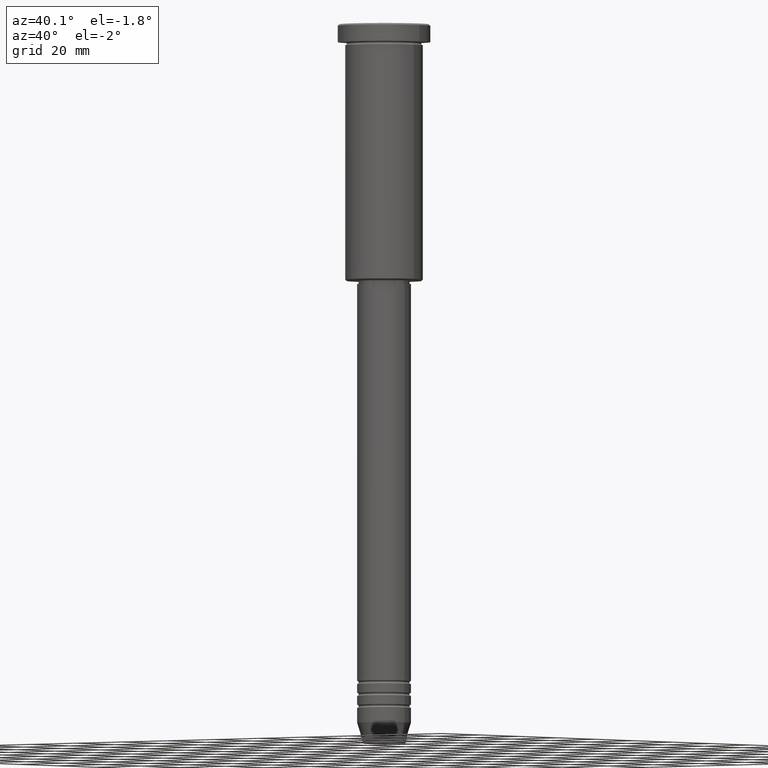
[diagram: clean part render]
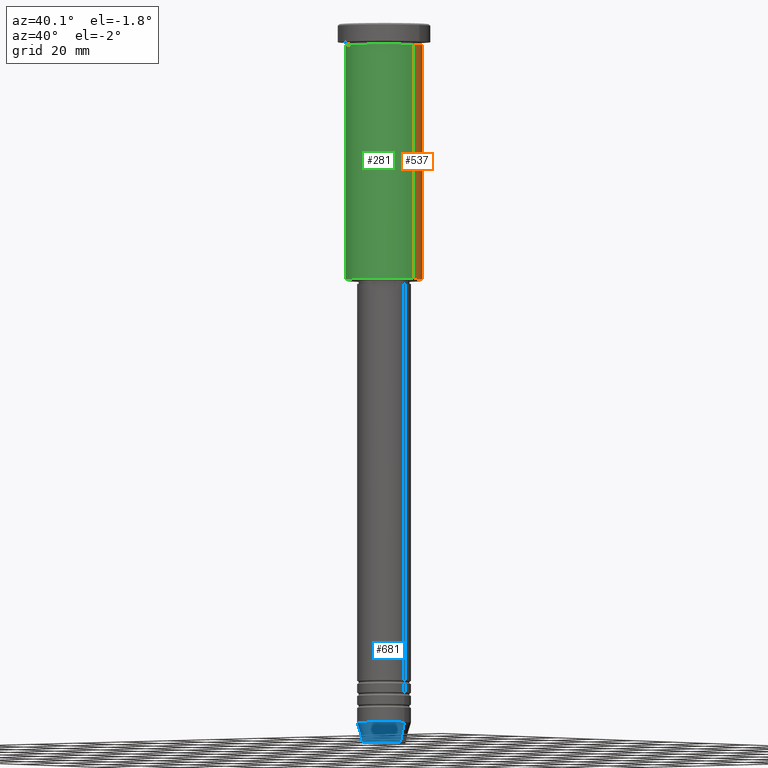
[diagram: same view with three faces highlighted in distinct colors, each labeled with its STEP entity id]
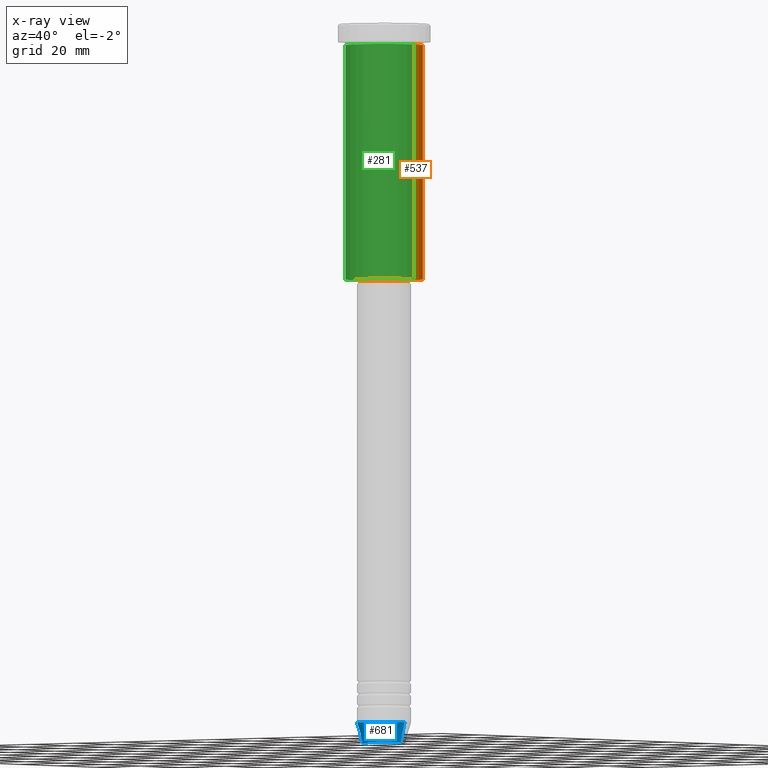
[diagram: x-ray of the same camera — body ghosted, the three highlighted faces saturated]
A machine part, auxiliary view with three faces highlighted in distinct colors.
The next image is the same camera in x-ray (body ghosted, the three faces saturated) — at least one of them is partly hidden behind the body in this view.
Their STEP definitions:

[orange] entity #537 — the highlighted cylindrical surface (partial cylindrical patch) has radius 13 mm, axis along (-0, -0, 1).
#16 = VERTEX_POINT ( 'NONE', #1105 ) ;
#42 = EDGE_CURVE ( 'NONE', #317, #16, #1102, .T. ) ;
#61 = VECTOR ( 'NONE', #582, 1000.000000000000000 ) ;
#73 = CARTESIAN_POINT ( 'NONE',  ( 13.00000000000000178, 0.000000000000000000, -6.999999999999995559 ) ) ;
#112 = EDGE_CURVE ( 'NONE', #1064, #16, #201, .T. ) ;
#118 = CARTESIAN_POINT ( 'NONE',  ( 13.00000000000000178, 0.000000000000000000, 0.000000000000000000 ) ) ;
#124 = DIRECTION ( 'NONE',  ( -0.000000000000000000, -0.000000000000000000, 1.000000000000000000 ) ) ;
#172 = EDGE_CURVE ( 'NONE', #430, #1064, #658, .T. ) ;
#201 = CIRCLE ( 'NONE', #878, 13.00000000000000178 ) ;
#213 = DIRECTION ( 'NONE',  ( 1.000000000000000000, 0.000000000000000000, 0.000000000000000000 ) ) ;
#259 = EDGE_LOOP ( 'NONE', ( #470, #625, #1122, #604 ) ) ;
#261 = DIRECTION ( 'NONE',  ( -0.000000000000000000, -0.000000000000000000, 1.000000000000000000 ) ) ;
#277 = FACE_OUTER_BOUND ( 'NONE', #259, .T. ) ;
#317 = VERTEX_POINT ( 'NONE', #1140 ) ;
#430 = VERTEX_POINT ( 'NONE', #795 ) ;
#470 = ORIENTED_EDGE ( 'NONE', *, *, #869, .T. ) ;
#537 = ADVANCED_FACE ( 'NONE', ( #277 ), #825, .T. ) ;
#568 = DIRECTION ( 'NONE',  ( 1.000000000000000000, 0.000000000000000000, 0.000000000000000000 ) ) ;
#573 = VECTOR ( 'NONE', #731, 1000.000000000000000 ) ;
#582 = DIRECTION ( 'NONE',  ( -0.000000000000000000, -0.000000000000000000, 1.000000000000000000 ) ) ;
#604 = ORIENTED_EDGE ( 'NONE', *, *, #172, .F. ) ;
#625 = ORIENTED_EDGE ( 'NONE', *, *, #42, .T. ) ;
#634 = DIRECTION ( 'NONE',  ( -1.000000000000000000, 0.000000000000000000, 0.000000000000000000 ) ) ;
#647 = CARTESIAN_POINT ( 'NONE',  ( -13.00000000000000178, 1.592040838891559293E-15, 0.000000000000000000 ) ) ;
#658 = LINE ( 'NONE', #118, #61 ) ;
#665 = CARTESIAN_POINT ( 'NONE',  ( 0.000000000000000000, 0.000000000000000000, 0.000000000000000000 ) ) ;
#676 = CIRCLE ( 'NONE', #1080, 13.00000000000000178 ) ;
#731 = DIRECTION ( 'NONE',  ( -0.000000000000000000, -0.000000000000000000, 1.000000000000000000 ) ) ;
#795 = CARTESIAN_POINT ( 'NONE',  ( 13.00000000000000178, 0.000000000000000000, -85.49999999999997158 ) ) ;
#825 = CYLINDRICAL_SURFACE ( 'NONE', #1150, 13.00000000000000178 ) ;
#869 = EDGE_CURVE ( 'NONE', #430, #317, #676, .T. ) ;
#878 = AXIS2_PLACEMENT_3D ( 'NONE', #942, #124, #213 ) ;
#918 = DIRECTION ( 'NONE',  ( -0.000000000000000000, -0.000000000000000000, 1.000000000000000000 ) ) ;
#942 = CARTESIAN_POINT ( 'NONE',  ( 0.000000000000000000, 0.000000000000000000, -6.999999999999995559 ) ) ;
#1064 = VERTEX_POINT ( 'NONE', #73 ) ;
#1080 = AXIS2_PLACEMENT_3D ( 'NONE', #1091, #261, #634 ) ;
#1091 = CARTESIAN_POINT ( 'NONE',  ( 0.000000000000000000, 0.000000000000000000, -85.49999999999997158 ) ) ;
#1102 = LINE ( 'NONE', #647, #573 ) ;
#1105 = CARTESIAN_POINT ( 'NONE',  ( -13.00000000000000178, 1.592040838891559293E-15, -6.999999999999995559 ) ) ;
#1122 = ORIENTED_EDGE ( 'NONE', *, *, #112, .F. ) ;
#1140 = CARTESIAN_POINT ( 'NONE',  ( -13.00000000000000178, 1.592040838891559293E-15, -85.49999999999997158 ) ) ;
#1150 = AXIS2_PLACEMENT_3D ( 'NONE', #665, #918, #568 ) ;

[blue] entity #681 — the highlighted conical surface has half-angle 15 deg.
#43 = CARTESIAN_POINT ( 'NONE',  ( 7.223655072137188604, 0.000000000000000000, -240.6294095225512706 ) ) ;
#94 = EDGE_CURVE ( 'NONE', #660, #125, #904, .T. ) ;
#109 = CARTESIAN_POINT ( 'NONE',  ( 0.000000000000000000, 0.000000000000000000, -240.6294095225512706 ) ) ;
#125 = VERTEX_POINT ( 'NONE', #479 ) ;
#136 = EDGE_CURVE ( 'NONE', #243, #660, #666, .T. ) ;
#141 = CARTESIAN_POINT ( 'NONE',  ( -9.000000000000000000, 1.102182119232617714E-15, -234.0000000000000000 ) ) ;
#208 = AXIS2_PLACEMENT_3D ( 'NONE', #623, #209, #222 ) ;
#209 = DIRECTION ( 'NONE',  ( -0.000000000000000000, -0.000000000000000000, 1.000000000000000000 ) ) ;
#222 = DIRECTION ( 'NONE',  ( 1.000000000000000000, 0.000000000000000000, 0.000000000000000000 ) ) ;
#243 = VERTEX_POINT ( 'NONE', #832 ) ;
#280 = VECTOR ( 'NONE', #1183, 1000.000000000000000 ) ;
#283 = CONICAL_SURFACE ( 'NONE', #208, 9.000000000000000000, 0.2617993877991500740 ) ;
#295 = AXIS2_PLACEMENT_3D ( 'NONE', #109, #927, #576 ) ;
#338 = VECTOR ( 'NONE', #872, 1000.000000000000000 ) ;
#355 = EDGE_CURVE ( 'NONE', #243, #1067, #406, .T. ) ;
#373 = DIRECTION ( 'NONE',  ( 1.000000000000000000, 0.000000000000000000, 0.000000000000000000 ) ) ;
#379 = CARTESIAN_POINT ( 'NONE',  ( 0.000000000000000000, 0.000000000000000000, -234.0000000000000000 ) ) ;
#406 = LINE ( 'NONE', #141, #338 ) ;
#427 = ORIENTED_EDGE ( 'NONE', *, *, #355, .F. ) ;
#434 = ORIENTED_EDGE ( 'NONE', *, *, #94, .T. ) ;
#479 = CARTESIAN_POINT ( 'NONE',  ( 9.000000000000000000, 0.000000000000000000, -234.0000000000000000 ) ) ;
#487 = DIRECTION ( 'NONE',  ( -0.000000000000000000, -0.000000000000000000, 1.000000000000000000 ) ) ;
#576 = DIRECTION ( 'NONE',  ( 1.000000000000000000, 0.000000000000000000, 0.000000000000000000 ) ) ;
#577 = AXIS2_PLACEMENT_3D ( 'NONE', #379, #487, #373 ) ;
#623 = CARTESIAN_POINT ( 'NONE',  ( 0.000000000000000000, 0.000000000000000000, -234.0000000000000000 ) ) ;
#660 = VERTEX_POINT ( 'NONE', #43 ) ;
#666 = CIRCLE ( 'NONE', #295, 7.223655072137188604 ) ;
#681 = ADVANCED_FACE ( 'NONE', ( #716 ), #283, .T. ) ;
#692 = EDGE_LOOP ( 'NONE', ( #427, #704, #434, #797 ) ) ;
#704 = ORIENTED_EDGE ( 'NONE', *, *, #136, .T. ) ;
#716 = FACE_OUTER_BOUND ( 'NONE', #692, .T. ) ;
#750 = CIRCLE ( 'NONE', #577, 9.000000000000000000 ) ;
#797 = ORIENTED_EDGE ( 'NONE', *, *, #939, .F. ) ;
#814 = CARTESIAN_POINT ( 'NONE',  ( 9.000000000000000000, 0.000000000000000000, -234.0000000000000000 ) ) ;
#832 = CARTESIAN_POINT ( 'NONE',  ( -7.223655072137189492, 9.934123627281765110E-16, -240.6294095225512706 ) ) ;
#872 = DIRECTION ( 'NONE',  ( -0.2588190451025213501, 3.169619151431772337E-17, 0.9659258262890680902 ) ) ;
#904 = LINE ( 'NONE', #814, #280 ) ;
#927 = DIRECTION ( 'NONE',  ( -0.000000000000000000, -0.000000000000000000, 1.000000000000000000 ) ) ;
#939 = EDGE_CURVE ( 'NONE', #1067, #125, #750, .T. ) ;
#1067 = VERTEX_POINT ( 'NONE', #1158 ) ;
#1158 = CARTESIAN_POINT ( 'NONE',  ( -9.000000000000000000, 1.102182119232617714E-15, -234.0000000000000000 ) ) ;
#1183 = DIRECTION ( 'NONE',  ( 0.2588190451025213501, 0.000000000000000000, 0.9659258262890680902 ) ) ;

[green] entity #281 — the highlighted cylindrical surface (partial cylindrical patch) has radius 13 mm, axis along (-0, -0, 1).
#16 = VERTEX_POINT ( 'NONE', #1105 ) ;
#42 = EDGE_CURVE ( 'NONE', #317, #16, #1102, .T. ) ;
#60 = EDGE_CURVE ( 'NONE', #317, #430, #1127, .T. ) ;
#61 = VECTOR ( 'NONE', #582, 1000.000000000000000 ) ;
#69 = DIRECTION ( 'NONE',  ( -0.000000000000000000, -0.000000000000000000, 1.000000000000000000 ) ) ;
#73 = CARTESIAN_POINT ( 'NONE',  ( 13.00000000000000178, 0.000000000000000000, -6.999999999999995559 ) ) ;
#118 = CARTESIAN_POINT ( 'NONE',  ( 13.00000000000000178, 0.000000000000000000, 0.000000000000000000 ) ) ;
#127 = AXIS2_PLACEMENT_3D ( 'NONE', #1069, #69, #148 ) ;
#148 = DIRECTION ( 'NONE',  ( 1.000000000000000000, 0.000000000000000000, 0.000000000000000000 ) ) ;
#172 = EDGE_CURVE ( 'NONE', #430, #1064, #658, .T. ) ;
#231 = ORIENTED_EDGE ( 'NONE', *, *, #531, .F. ) ;
#257 = EDGE_LOOP ( 'NONE', ( #521, #383, #525, #231 ) ) ;
#281 = ADVANCED_FACE ( 'NONE', ( #524 ), #608, .T. ) ;
#317 = VERTEX_POINT ( 'NONE', #1140 ) ;
#364 = DIRECTION ( 'NONE',  ( -0.000000000000000000, -0.000000000000000000, 1.000000000000000000 ) ) ;
#383 = ORIENTED_EDGE ( 'NONE', *, *, #60, .T. ) ;
#430 = VERTEX_POINT ( 'NONE', #795 ) ;
#452 = DIRECTION ( 'NONE',  ( -1.000000000000000000, 0.000000000000000000, 0.000000000000000000 ) ) ;
#463 = CARTESIAN_POINT ( 'NONE',  ( 0.000000000000000000, 0.000000000000000000, -85.49999999999997158 ) ) ;
#521 = ORIENTED_EDGE ( 'NONE', *, *, #42, .F. ) ;
#524 = FACE_OUTER_BOUND ( 'NONE', #257, .T. ) ;
#525 = ORIENTED_EDGE ( 'NONE', *, *, #172, .T. ) ;
#531 = EDGE_CURVE ( 'NONE', #16, #1064, #924, .T. ) ;
#573 = VECTOR ( 'NONE', #731, 1000.000000000000000 ) ;
#582 = DIRECTION ( 'NONE',  ( -0.000000000000000000, -0.000000000000000000, 1.000000000000000000 ) ) ;
#608 = CYLINDRICAL_SURFACE ( 'NONE', #127, 13.00000000000000178 ) ;
#647 = CARTESIAN_POINT ( 'NONE',  ( -13.00000000000000178, 1.592040838891559293E-15, 0.000000000000000000 ) ) ;
#658 = LINE ( 'NONE', #118, #61 ) ;
#697 = AXIS2_PLACEMENT_3D ( 'NONE', #983, #1008, #1024 ) ;
#731 = DIRECTION ( 'NONE',  ( -0.000000000000000000, -0.000000000000000000, 1.000000000000000000 ) ) ;
#795 = CARTESIAN_POINT ( 'NONE',  ( 13.00000000000000178, 0.000000000000000000, -85.49999999999997158 ) ) ;
#924 = CIRCLE ( 'NONE', #697, 13.00000000000000178 ) ;
#983 = CARTESIAN_POINT ( 'NONE',  ( 0.000000000000000000, 0.000000000000000000, -6.999999999999995559 ) ) ;
#1008 = DIRECTION ( 'NONE',  ( -0.000000000000000000, -0.000000000000000000, 1.000000000000000000 ) ) ;
#1024 = DIRECTION ( 'NONE',  ( 1.000000000000000000, 0.000000000000000000, 0.000000000000000000 ) ) ;
#1064 = VERTEX_POINT ( 'NONE', #73 ) ;
#1069 = CARTESIAN_POINT ( 'NONE',  ( 0.000000000000000000, 0.000000000000000000, 0.000000000000000000 ) ) ;
#1102 = LINE ( 'NONE', #647, #573 ) ;
#1105 = CARTESIAN_POINT ( 'NONE',  ( -13.00000000000000178, 1.592040838891559293E-15, -6.999999999999995559 ) ) ;
#1127 = CIRCLE ( 'NONE', #1168, 13.00000000000000178 ) ;
#1140 = CARTESIAN_POINT ( 'NONE',  ( -13.00000000000000178, 1.592040838891559293E-15, -85.49999999999997158 ) ) ;
#1168 = AXIS2_PLACEMENT_3D ( 'NONE', #463, #364, #452 ) ;